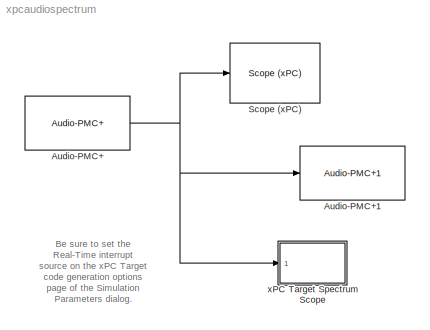
MODEL xpcaudiospectrum
KIND model
BLOCK [Reference] Audio-PMC+  REF=xpclib/Audio/Bittware/Audio-PMC+
  Ports = [0, 1]
  SourceBlock = xpclib/Audio/Bittware/Audio-PMC+
  SourceType = bwaudpmc-ain
  channel = [1]
  convert = +-1.000
  framesize = 1
  samplerate = 25000
  sampletime = -1
  slot = -1
BLOCK [Reference] Audio-PMC+1  REF=xpclib/Audio/Bittware/Audio-PMC+1
  Ports = [1]
  SourceBlock = xpclib/Audio/Bittware/Audio-PMC+1
  SourceType = bwaudpmc-aout
  channel = [1]
  framesize = 1
  samplerate = 25000
  sampletime = -1
  slot = -1
BLOCK [Reference] Scope (xPC)   REF=xpclib/Misc./Scope (xPC) 
  Ports = [1]
  ShowPortLabels = on
  SourceBlock = xpclib/Misc./Scope (xPC)
  SourceType = xpcscopeblock
  autorestart = off
  autostart = on
  filename = data.dat
  formatstr = '%15.6f'
  grid = on
  interleave = 1
  mode = Lazy
  noprepostsamples = 0
  nosamples = 100
  scopeno = 1
  scopetype = Target
  triggerlevel = 0.0
  triggermode = Signal triggering
  triggersample = 0
  triggerscope = 1
  triggersignal = 1
  triggerslope = Rising
  viewmode = Graphical redraw
  writesize = 512
  ylimits = [-1,1]
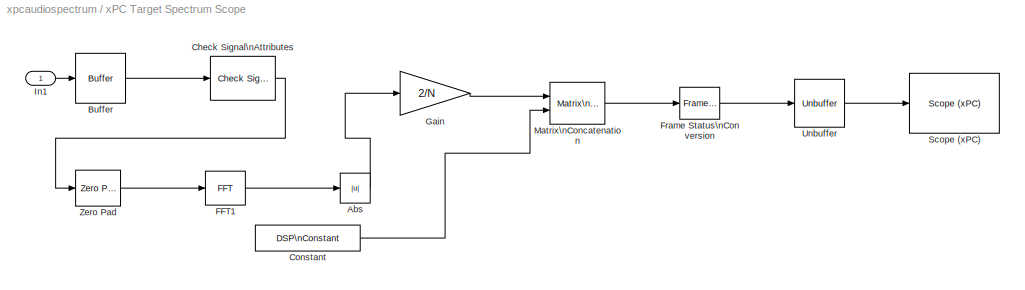
BLOCK [SubSystem] xPC Target Spectrum Scope
  MaskCallbackString = ||
  MaskDisplay = disp('Spectrum')
  MaskEnableString = on,on,on
  MaskIconFrame = on
  MaskIconOpaque = on
  MaskIconRotate = none
  MaskIconUnits = autoscale
  MaskInitialization = N=2^(3+N);\nif scopetype==1\nset_param([gcb,'/Scope (xPC) '],'scopetype','Host');\nelseif scopetype==2\nset_param([gcb,'/Scope (xPC) '],'scopetype','Target');\nend\n
  MaskPromptString = Length of FFT:|Scope Type:|Y-Axis Limits:
  MaskStyleString = popup(16|32|64|128|256|512|1024),popup(Host|Target),edit
  MaskTabNameString = ,,
  MaskToolTipString = on,on,on
  MaskTunableValueString = on,on,on
  MaskType = spectrum
  MaskValueString = 512|Target|[0,0.7]
  MaskVarAliasString = ,,
  MaskVariables = N=@1;scopetype=@2;axeslimits=@3;
  MaskVisibilityString = on,on,on
  MinAlgLoopOccurrences = off
  Ports = [1]
  PropExecContextAcrossSSBoundary = on
  RTWSystemCode = Auto
  TreatAsAtomicUnit = off
BLOCK [Abs] xPC Target Spectrum Scope/Abs
BLOCK [Reference] xPC Target Spectrum Scope/Buffer  REF=dspbuff3/Buffer
  N = N
  Ports = [1, 1]
  SourceBlock = dspbuff3/Buffer
  SourceType = Buffer
  V = 0
  ic = 0
BLOCK [Reference] xPC Target Spectrum Scope/Check Signal\nAttributes  REF=dspsigattribs/Check Signal\nAttributes
  Complexity = Ignore
  DatatypeCheckMethod = Ignore
  DatatypeGeneral = Boolean
  Dimensions = Column vector (2-D)
  DimsCheckMethod = Is...
  DtypeFixedSpecific = Any fixed-point
  DtypeFloatSpecific = Any floating-point
  DtypeIntSpecific = Any integer
  Frame = Frame-based
  Ports = [1, 1]
  SampleMode = Ignore
  ShowPortLabels = on
  SigAttribCheckMethod = Does not match attributes exactly
  SourceBlock = dspsigattribs/Check Signal\nAttributes
  SourceType = Check Signal Attributes
BLOCK [Reference] xPC Target Spectrum Scope/Constant  REF=dspsrcs4/DSP\nConstant
  FramebasedOutput = off
  InterpretAs1D = off
  Ports = [0, 1]
  SampleMode = Discrete
  ShowPortLabels = on
  SourceBlock = dspsrcs4/DSP\nConstant
  SourceType = DSP Constant
  Ts = -1
  Value = [0.01;zeros(N-1,1)]
  additionalParams = off
  allowOverrides = on
  continuousOutput = Sample-based
  dataType = Inherit from 'Constant value'
  discreteOutput = Sample-based
  fracBitsMode = Best precision
  framePeriod = -1
  isSigned = on
  numFracBits = 15
  sampTime = -1
  udDataType = sfix(16)
  wordLen = 16
BLOCK [Reference] xPC Target Spectrum Scope/FFT1  REF=dspxfrm3/FFT
  BitRevOrder = off
  CompMethod = Table lookup
  DialogController = dspDDGCreate
  DialogControllerArgs = DataTag0
  Ports = [1, 1]
  SkipNorm = on
  SourceBlock = dspxfrm3/FFT
  SourceType = FFT
  TableOpt = Speed
  accumFracLength = 30
  accumMode = Inherit via internal rule
  accumWordLength = 32
  additionalParams = off
  allowOverrides = on
  firstCoeffFracLength = 15
  firstCoeffMode = Same word length as input
  firstCoeffWordLength = 16
  outputFracLength = 15
  outputMode = Inherit via internal rule
  outputWordLength = 16
  overflowMode = off
  prodOutputFracLength = 30
  prodOutputMode = Inherit via internal rule
  prodOutputWordLength = 32
  roundingMode = Floor
BLOCK [Reference] xPC Target Spectrum Scope/Frame Status\nConversion  REF=dspsigattribs/Frame Status\nConversion
  Ports = [1, 1]
  ShowPortLabels = off
  SourceBlock = dspsigattribs/Frame Status\nConversion
  SourceType = Frame Status Conversion
  growRefPort = off
  outframe = Frame-based
BLOCK [Gain] xPC Target Spectrum Scope/Gain
  Gain = 2/N
BLOCK [Inport] xPC Target Spectrum Scope/In1
  IconDisplay = Port number
  LatchInput = off
BLOCK [Reference] xPC Target Spectrum Scope/Matrix\nConcatenation  REF=simulink/Math\nOperations/Matrix\nConcatenation
  Ports = [2, 1]
  SourceBlock = simulink/Math\nOperations/Matrix\nConcatenation
  SourceType = Matrix Concatenation
  catMethod = Horizontal
  numInports = 2
BLOCK [Reference] xPC Target Spectrum Scope/Scope (xPC)   REF=xpclib/Misc./Scope (xPC) 
  Ports = [1]
  ShowPortLabels = on
  SourceBlock = xpclib/Misc./Scope (xPC)
  SourceType = xpcscopeblock
  autorestart = off
  autostart = on
  filename = data.dat
  formatstr = '%15.6f'
  grid = on
  interleave = 1
  mode = Lazy
  noprepostsamples = 0
  nosamples = N/2
  scopeno = 2
  scopetype = Target
  triggerlevel = 0.005
  triggermode = Signal triggering
  triggersample = 0
  triggerscope = 1
  triggersignal = 2
  triggerslope = Rising
  viewmode = Graphical redraw
  writesize = 512
  ylimits = axeslimits
BLOCK [Reference] xPC Target Spectrum Scope/Unbuffer  REF=dspbuff3/Unbuffer
  Ports = [1, 1]
  SourceBlock = dspbuff3/Unbuffer
  SourceType = Unbuffer
  ic = 0
BLOCK [Reference] xPC Target Spectrum Scope/Zero Pad  REF=dspsigops/Zero Pad
  Ports = [1, 1]
  SourceBlock = dspsigops/Zero Pad
  SourceType = Zero Pad
  numOutCols = 1
  numOutRows = N
  padNumOutColsSpecMethod = User-specified
  padNumOutRowsSpecMethod = User-specified
  padSigAt = End
  trunc_flag = None
  zpadAlong = Columns
ANNOTATION (root): Be sure to set the\nReal-Time interrupt\nsource on the xPC Target\ncode generation options\npage of the Simulation \nParameters dialog.
NET Audio-PMC+:1 -> Audio-PMC+1:1, Scope (xPC) :1, xPC Target Spectrum Scope:1
LINE xPC Target Spectrum Scope/Abs:1 -> xPC Target Spectrum Scope/Gain:1
LINE xPC Target Spectrum Scope/Buffer:1 -> xPC Target Spectrum Scope/Check Signal\nAttributes:1
LINE xPC Target Spectrum Scope/Check Signal\nAttributes:1 -> xPC Target Spectrum Scope/Zero Pad:1
LINE xPC Target Spectrum Scope/Constant:1 -> xPC Target Spectrum Scope/Matrix\nConcatenation:2
LINE xPC Target Spectrum Scope/FFT1:1 -> xPC Target Spectrum Scope/Abs:1
LINE xPC Target Spectrum Scope/Frame Status\nConversion:1 -> xPC Target Spectrum Scope/Unbuffer:1
LINE xPC Target Spectrum Scope/Gain:1 -> xPC Target Spectrum Scope/Matrix\nConcatenation:1
LINE xPC Target Spectrum Scope/In1:1 -> xPC Target Spectrum Scope/Buffer:1
LINE xPC Target Spectrum Scope/Matrix\nConcatenation:1 -> xPC Target Spectrum Scope/Frame Status\nConversion:1
LINE xPC Target Spectrum Scope/Unbuffer:1 -> xPC Target Spectrum Scope/Scope (xPC) :1
LINE xPC Target Spectrum Scope/Zero Pad:1 -> xPC Target Spectrum Scope/FFT1:1
note: NET lines group one-source signal fan-out (src -> all destinations, sorted); 1:1 wires keep LINE
